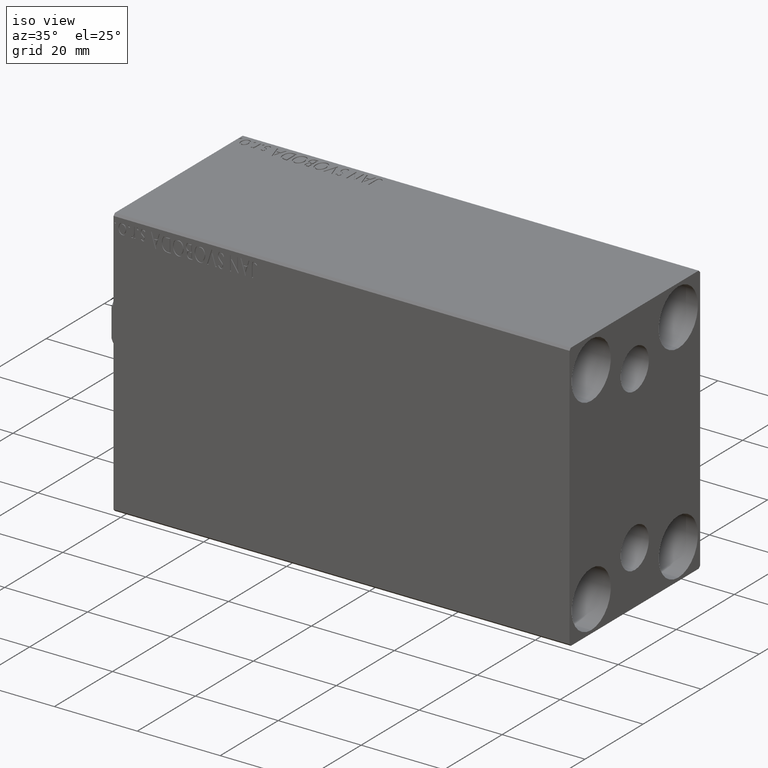
[diagram: clean part render]
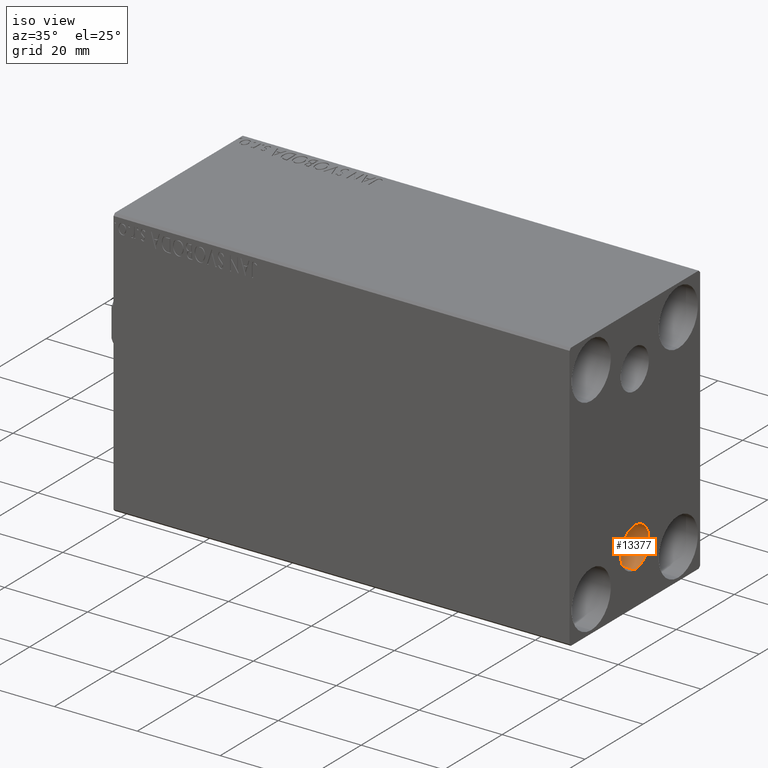
[diagram: same view with one face highlighted and labeled with its STEP entity id]
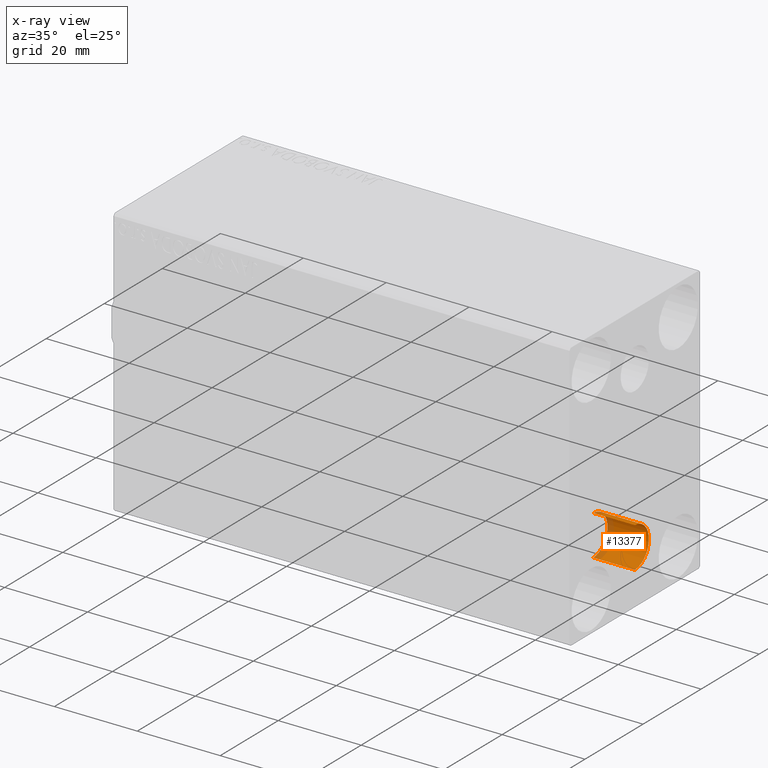
[diagram: x-ray of the same camera — body ghosted, the highlighted face saturated]
A machine part, iso view. The second image highlights one B-rep face of the part: STEP entity #13377.
The next image is the same camera in x-ray: the body ghosted, the highlighted face saturated — about 15% of this face is hidden behind the body in this view.
In plain terms, the highlighted cylindrical surface (edge-blend (fillet) strip) has radius 4.86 mm, axis along (1, 0, 0).
Its self-contained STEP definition (entity closure, byte-faithful):
#791 = LINE ( 'NONE', #14323, #43262 ) ;
#802 = EDGE_CURVE ( 'NONE', #40177, #37270, #28913, .T. ) ;
#4040 = CARTESIAN_POINT ( 'NONE',  ( 100.0000000000000000, 2.983239602722951428E-15, -14.63999999999999702 ) ) ;
#6833 = DIRECTION ( 'NONE',  ( 0.000000000000000000, 0.000000000000000000, 1.000000000000000000 ) ) ;
#7668 = AXIS2_PLACEMENT_3D ( 'NONE', #27552, #20895, #38369 ) ;
#8386 = AXIS2_PLACEMENT_3D ( 'NONE', #20816, #28563, #38286 ) ;
#9847 = DIRECTION ( 'NONE',  ( 1.000000000000000000, -0.000000000000000000, -0.000000000000000000 ) ) ;
#12143 = CIRCLE ( 'NONE', #42539, 4.859999999999999432 ) ;
#13077 = ORIENTED_EDGE ( 'NONE', *, *, #27015, .F. ) ;
#13377 = ADVANCED_FACE ( 'NONE', ( #24229 ), #14480, .F. ) ;
#14090 = ORIENTED_EDGE ( 'NONE', *, *, #22463, .T. ) ;
#14323 = CARTESIAN_POINT ( 'NONE',  ( 100.0000000000000000, 2.388061258337338150E-15, -24.35999999999999588 ) ) ;
#14438 = ORIENTED_EDGE ( 'NONE', *, *, #802, .F. ) ;
#14480 = CYLINDRICAL_SURFACE ( 'NONE', #7668, 4.859999999999999432 ) ;
#14751 = CARTESIAN_POINT ( 'NONE',  ( 110.0000000000000000, 2.388061258337338150E-15, -24.35999999999999588 ) ) ;
#17613 = VERTEX_POINT ( 'NONE', #31207 ) ;
#20816 = CARTESIAN_POINT ( 'NONE',  ( 100.0000000000000000, 2.388061258337338150E-15, -19.49999999999999645 ) ) ;
#20895 = DIRECTION ( 'NONE',  ( 1.000000000000000000, -0.000000000000000000, -0.000000000000000000 ) ) ;
#21401 = EDGE_CURVE ( 'NONE', #30561, #17613, #12143, .T. ) ;
#22463 = EDGE_CURVE ( 'NONE', #40177, #30561, #791, .T. ) ;
#23457 = CARTESIAN_POINT ( 'NONE',  ( 110.0000000000000000, 2.388061258337338150E-15, -19.49999999999999645 ) ) ;
#24229 = FACE_OUTER_BOUND ( 'NONE', #37036, .T. ) ;
#27015 = EDGE_CURVE ( 'NONE', #37270, #17613, #36853, .T. ) ;
#27126 = VECTOR ( 'NONE', #9847, 1000.000000000000000 ) ;
#27552 = CARTESIAN_POINT ( 'NONE',  ( 100.0000000000000000, 2.388061258337338150E-15, -19.49999999999999645 ) ) ;
#28563 = DIRECTION ( 'NONE',  ( 1.000000000000000000, 0.000000000000000000, -0.000000000000000000 ) ) ;
#28913 = CIRCLE ( 'NONE', #8386, 4.859999999999999432 ) ;
#30561 = VERTEX_POINT ( 'NONE', #14751 ) ;
#31207 = CARTESIAN_POINT ( 'NONE',  ( 110.0000000000000000, 2.983239602722951428E-15, -14.63999999999999702 ) ) ;
#33593 = DIRECTION ( 'NONE',  ( 1.000000000000000000, -0.000000000000000000, -0.000000000000000000 ) ) ;
#35169 = CARTESIAN_POINT ( 'NONE',  ( 100.0000000000000000, 2.388061258337338150E-15, -24.35999999999999588 ) ) ;
#35936 = ORIENTED_EDGE ( 'NONE', *, *, #21401, .T. ) ;
#36853 = LINE ( 'NONE', #40614, #27126 ) ;
#37036 = EDGE_LOOP ( 'NONE', ( #13077, #14438, #14090, #35936 ) ) ;
#37270 = VERTEX_POINT ( 'NONE', #4040 ) ;
#38286 = DIRECTION ( 'NONE',  ( 0.000000000000000000, 0.000000000000000000, 1.000000000000000000 ) ) ;
#38369 = DIRECTION ( 'NONE',  ( 0.000000000000000000, 0.000000000000000000, -1.000000000000000000 ) ) ;
#40177 = VERTEX_POINT ( 'NONE', #35169 ) ;
#40614 = CARTESIAN_POINT ( 'NONE',  ( 100.0000000000000000, 2.983239602722951428E-15, -14.63999999999999702 ) ) ;
#41532 = DIRECTION ( 'NONE',  ( 1.000000000000000000, 0.000000000000000000, -0.000000000000000000 ) ) ;
#42539 = AXIS2_PLACEMENT_3D ( 'NONE', #23457, #41532, #6833 ) ;
#43262 = VECTOR ( 'NONE', #33593, 1000.000000000000000 ) ;